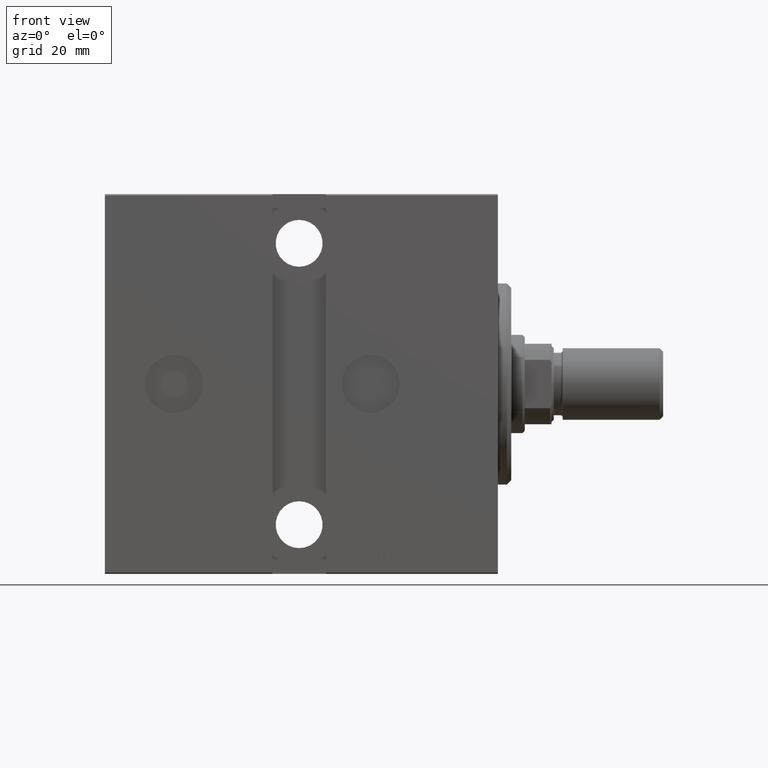
[diagram: clean part render]
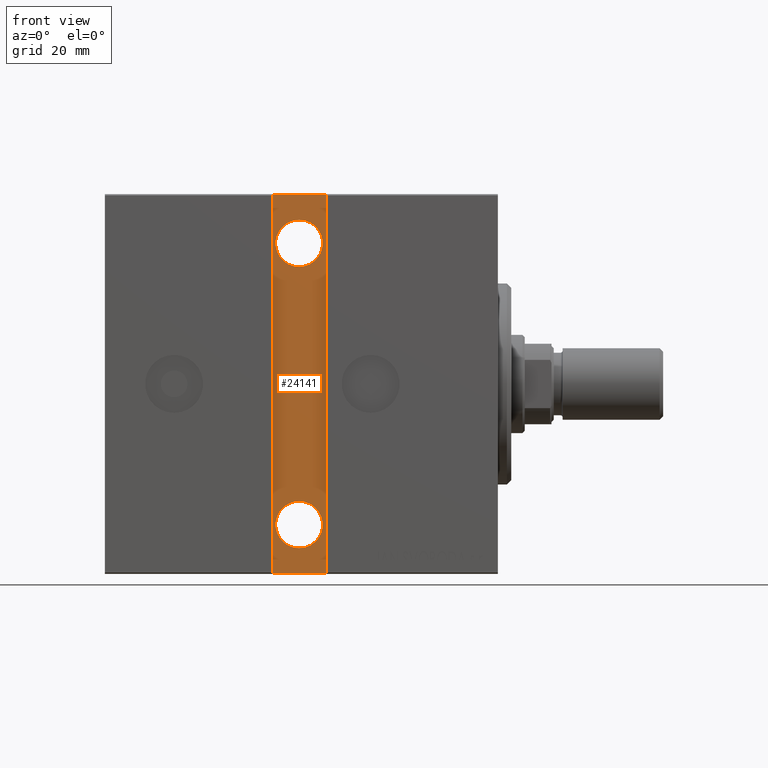
[diagram: same view with one face highlighted and labeled with its STEP entity id]
A machine part, front view. The second image highlights one B-rep face of the part: STEP entity #24141.
In plain terms, the highlighted planar face has unit normal (0, 1, 0).
Its self-contained STEP definition (entity closure, byte-faithful):
#472 = VERTEX_POINT ( 'NONE', #30540 ) ;
#759 = AXIS2_PLACEMENT_3D ( 'NONE', #19053, #9473, #22317 ) ;
#1186 = EDGE_CURVE ( 'NONE', #26786, #16917, #2157, .T. ) ;
#1190 = CARTESIAN_POINT ( 'NONE',  ( 50.50000000000000711, 28.50000000000000711, 42.49999999999995737 ) ) ;
#2157 = CIRCLE ( 'NONE', #759, 5.249999999999997335 ) ;
#2977 = DIRECTION ( 'NONE',  ( 0.000000000000000000, 0.000000000000000000, -1.000000000000000000 ) ) ;
#3997 = EDGE_CURVE ( 'NONE', #29518, #36667, #11632, .T. ) ;
#6096 = LINE ( 'NONE', #32670, #20434 ) ;
#7254 = AXIS2_PLACEMENT_3D ( 'NONE', #39745, #32805, #2977 ) ;
#8291 = EDGE_LOOP ( 'NONE', ( #14632, #13549 ) ) ;
#9303 = FACE_OUTER_BOUND ( 'NONE', #25330, .T. ) ;
#9473 = DIRECTION ( 'NONE',  ( 0.000000000000000000, -1.000000000000000000, 0.000000000000000000 ) ) ;
#10696 = CARTESIAN_POINT ( 'NONE',  ( 38.50000000000000000, 28.50000000000000711, -42.50000000000000711 ) ) ;
#10737 = CARTESIAN_POINT ( 'NONE',  ( 38.50000000000000711, 28.50000000000000711, 42.49999999999995737 ) ) ;
#11037 = VECTOR ( 'NONE', #12082, 1000.000000000000000 ) ;
#11370 = ORIENTED_EDGE ( 'NONE', *, *, #39759, .T. ) ;
#11632 = LINE ( 'NONE', #37769, #19507 ) ;
#12082 = DIRECTION ( 'NONE',  ( 8.163404592832036431E-17, 0.000000000000000000, 1.000000000000000000 ) ) ;
#13549 = ORIENTED_EDGE ( 'NONE', *, *, #33876, .T. ) ;
#14399 = CARTESIAN_POINT ( 'NONE',  ( 44.50000000000002132, 28.50000000000001066, -36.75000000000000000 ) ) ;
#14632 = ORIENTED_EDGE ( 'NONE', *, *, #42476, .T. ) ;
#14689 = DIRECTION ( 'NONE',  ( 1.000000000000000000, -0.000000000000000000, -0.000000000000000000 ) ) ;
#14843 = CIRCLE ( 'NONE', #23171, 5.249999999999997335 ) ;
#15177 = CARTESIAN_POINT ( 'NONE',  ( 50.49999999999999289, 28.50000000000000711, -42.50000000000000711 ) ) ;
#15498 = CIRCLE ( 'NONE', #29443, 5.249999999999997335 ) ;
#16044 = DIRECTION ( 'NONE',  ( 0.000000000000000000, -0.000000000000000000, -1.000000000000000000 ) ) ;
#16282 = DIRECTION ( 'NONE',  ( 0.000000000000000000, -1.000000000000000000, 0.000000000000000000 ) ) ;
#16917 = VERTEX_POINT ( 'NONE', #27784 ) ;
#18653 = DIRECTION ( 'NONE',  ( -1.000000000000000000, 0.000000000000000000, 0.000000000000000000 ) ) ;
#19053 = CARTESIAN_POINT ( 'NONE',  ( 44.50000000000002132, 28.50000000000001066, -31.50000000000000000 ) ) ;
#19507 = VECTOR ( 'NONE', #14689, 1000.000000000000000 ) ;
#19650 = ORIENTED_EDGE ( 'NONE', *, *, #24088, .T. ) ;
#20434 = VECTOR ( 'NONE', #42680, 1000.000000000000000 ) ;
#20690 = EDGE_CURVE ( 'NONE', #25986, #29518, #41675, .T. ) ;
#21144 = ORIENTED_EDGE ( 'NONE', *, *, #20690, .T. ) ;
#22317 = DIRECTION ( 'NONE',  ( 0.000000000000000000, 0.000000000000000000, -1.000000000000000000 ) ) ;
#23171 = AXIS2_PLACEMENT_3D ( 'NONE', #42827, #35214, #31954 ) ;
#24088 = EDGE_CURVE ( 'NONE', #34651, #25986, #24985, .T. ) ;
#24141 = ADVANCED_FACE ( 'NONE', ( #25851, #36297, #9303 ), #35647, .F. ) ;
#24985 = LINE ( 'NONE', #15177, #29910 ) ;
#25100 = ORIENTED_EDGE ( 'NONE', *, *, #1186, .T. ) ;
#25330 = EDGE_LOOP ( 'NONE', ( #21144, #29571, #35552, #19650 ) ) ;
#25715 = AXIS2_PLACEMENT_3D ( 'NONE', #26074, #42822, #16044 ) ;
#25851 = FACE_BOUND ( 'NONE', #8291, .T. ) ;
#25986 = VERTEX_POINT ( 'NONE', #10696 ) ;
#26044 = CIRCLE ( 'NONE', #7254, 5.249999999999997335 ) ;
#26074 = CARTESIAN_POINT ( 'NONE',  ( 0.000000000000000000, 28.50000000000000711, 0.000000000000000000 ) ) ;
#26786 = VERTEX_POINT ( 'NONE', #14399 ) ;
#27784 = CARTESIAN_POINT ( 'NONE',  ( 44.50000000000002132, 28.50000000000001066, -26.25000000000000355 ) ) ;
#29065 = CARTESIAN_POINT ( 'NONE',  ( 38.50000000000000000, 28.50000000000000711, -42.50000000000000711 ) ) ;
#29443 = AXIS2_PLACEMENT_3D ( 'NONE', #29575, #16282, #38914 ) ;
#29518 = VERTEX_POINT ( 'NONE', #10737 ) ;
#29571 = ORIENTED_EDGE ( 'NONE', *, *, #3997, .T. ) ;
#29575 = CARTESIAN_POINT ( 'NONE',  ( 44.50000000000002132, 28.50000000000001066, 31.50000000000000000 ) ) ;
#29910 = VECTOR ( 'NONE', #18653, 1000.000000000000000 ) ;
#30540 = CARTESIAN_POINT ( 'NONE',  ( 44.50000000000002132, 28.50000000000001066, 36.75000000000000000 ) ) ;
#30954 = EDGE_LOOP ( 'NONE', ( #11370, #25100 ) ) ;
#31954 = DIRECTION ( 'NONE',  ( 0.000000000000000000, 0.000000000000000000, -1.000000000000000000 ) ) ;
#32670 = CARTESIAN_POINT ( 'NONE',  ( 50.49999999999999289, 28.50000000000000711, -42.50000000000000711 ) ) ;
#32805 = DIRECTION ( 'NONE',  ( 0.000000000000000000, -1.000000000000000000, 0.000000000000000000 ) ) ;
#33327 = CARTESIAN_POINT ( 'NONE',  ( 50.50000000000000711, 28.50000000000000355, -42.50000000000000711 ) ) ;
#33876 = EDGE_CURVE ( 'NONE', #35404, #472, #15498, .T. ) ;
#34651 = VERTEX_POINT ( 'NONE', #33327 ) ;
#35214 = DIRECTION ( 'NONE',  ( 0.000000000000000000, -1.000000000000000000, 0.000000000000000000 ) ) ;
#35404 = VERTEX_POINT ( 'NONE', #37856 ) ;
#35552 = ORIENTED_EDGE ( 'NONE', *, *, #40346, .T. ) ;
#35647 = PLANE ( 'NONE',  #25715 ) ;
#36297 = FACE_BOUND ( 'NONE', #30954, .T. ) ;
#36667 = VERTEX_POINT ( 'NONE', #1190 ) ;
#37769 = CARTESIAN_POINT ( 'NONE',  ( 50.50000000000000711, 28.50000000000000711, 42.49999999999995737 ) ) ;
#37856 = CARTESIAN_POINT ( 'NONE',  ( 44.50000000000002132, 28.50000000000001066, 26.25000000000000355 ) ) ;
#38914 = DIRECTION ( 'NONE',  ( 0.000000000000000000, 0.000000000000000000, -1.000000000000000000 ) ) ;
#39745 = CARTESIAN_POINT ( 'NONE',  ( 44.50000000000002132, 28.50000000000001066, 31.50000000000000000 ) ) ;
#39759 = EDGE_CURVE ( 'NONE', #16917, #26786, #14843, .T. ) ;
#40346 = EDGE_CURVE ( 'NONE', #36667, #34651, #6096, .T. ) ;
#41675 = LINE ( 'NONE', #29065, #11037 ) ;
#42476 = EDGE_CURVE ( 'NONE', #472, #35404, #26044, .T. ) ;
#42680 = DIRECTION ( 'NONE',  ( -1.632680918566407286E-16, -0.000000000000000000, -1.000000000000000000 ) ) ;
#42822 = DIRECTION ( 'NONE',  ( 0.000000000000000000, -1.000000000000000000, 0.000000000000000000 ) ) ;
#42827 = CARTESIAN_POINT ( 'NONE',  ( 44.50000000000002132, 28.50000000000001066, -31.50000000000000000 ) ) ;